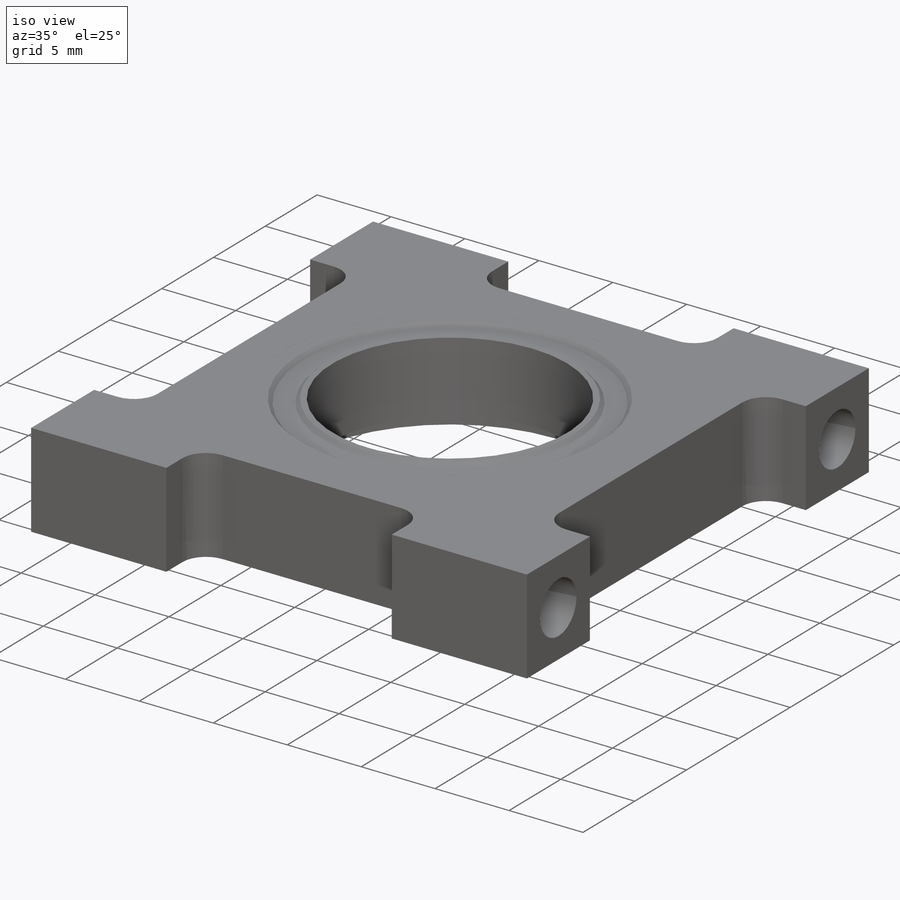
[diagram: iso view]
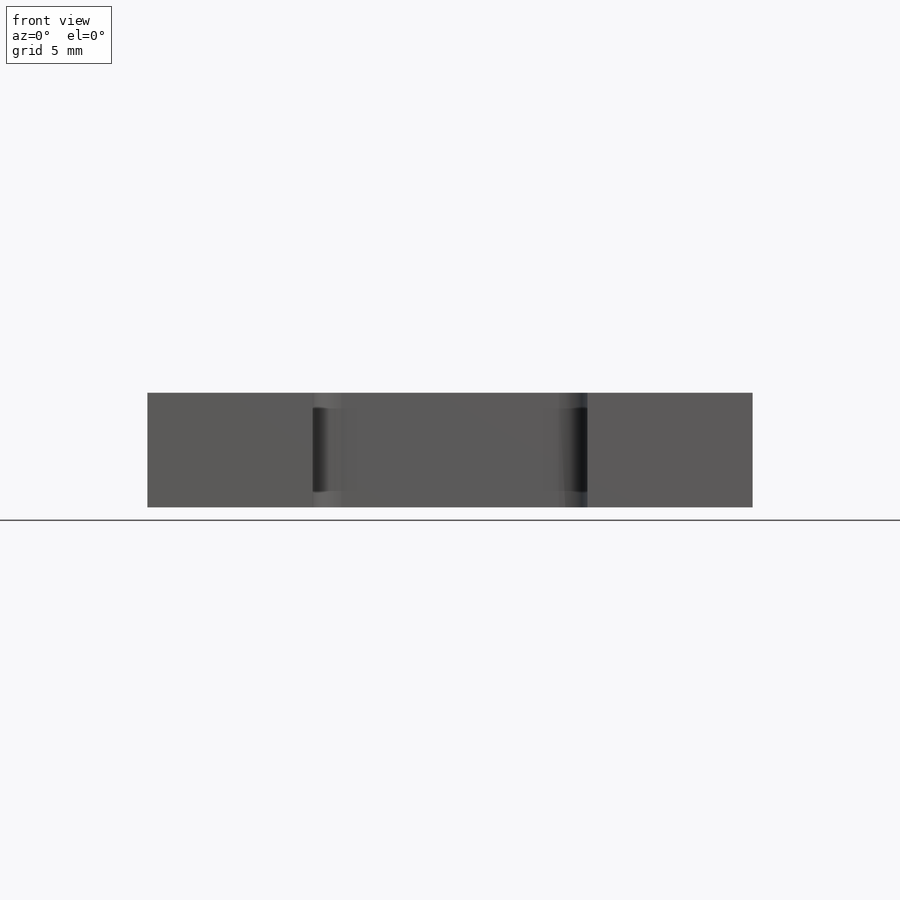
[diagram: front view]
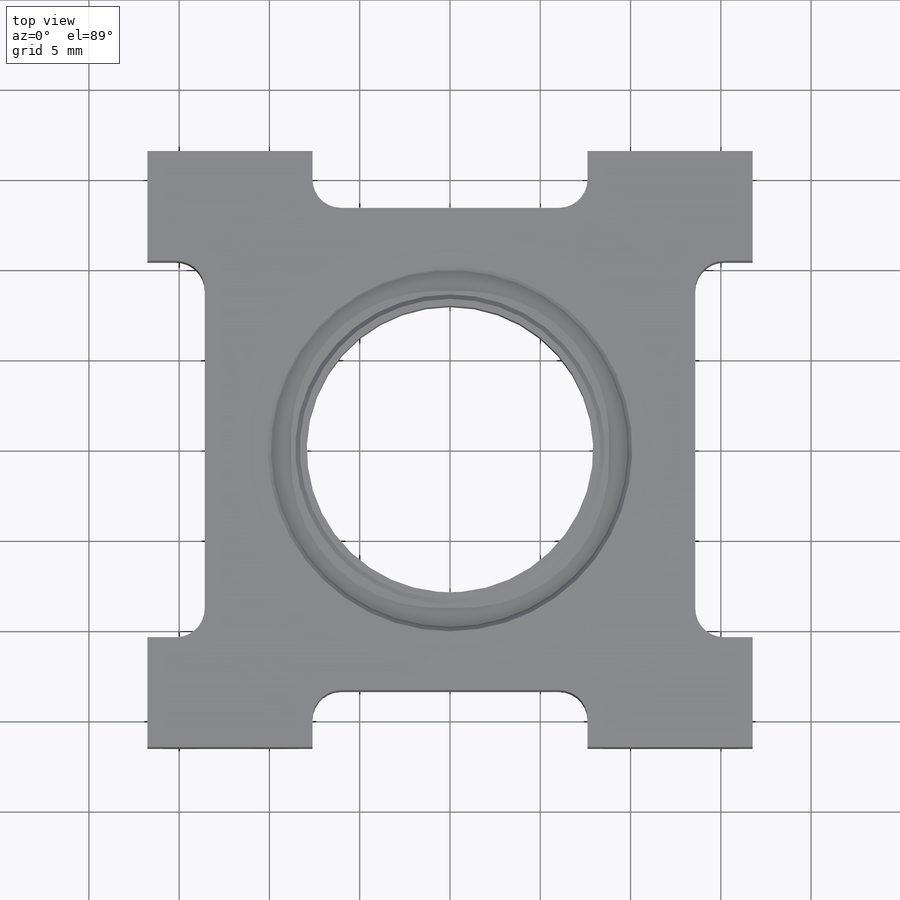
[diagram: top view]
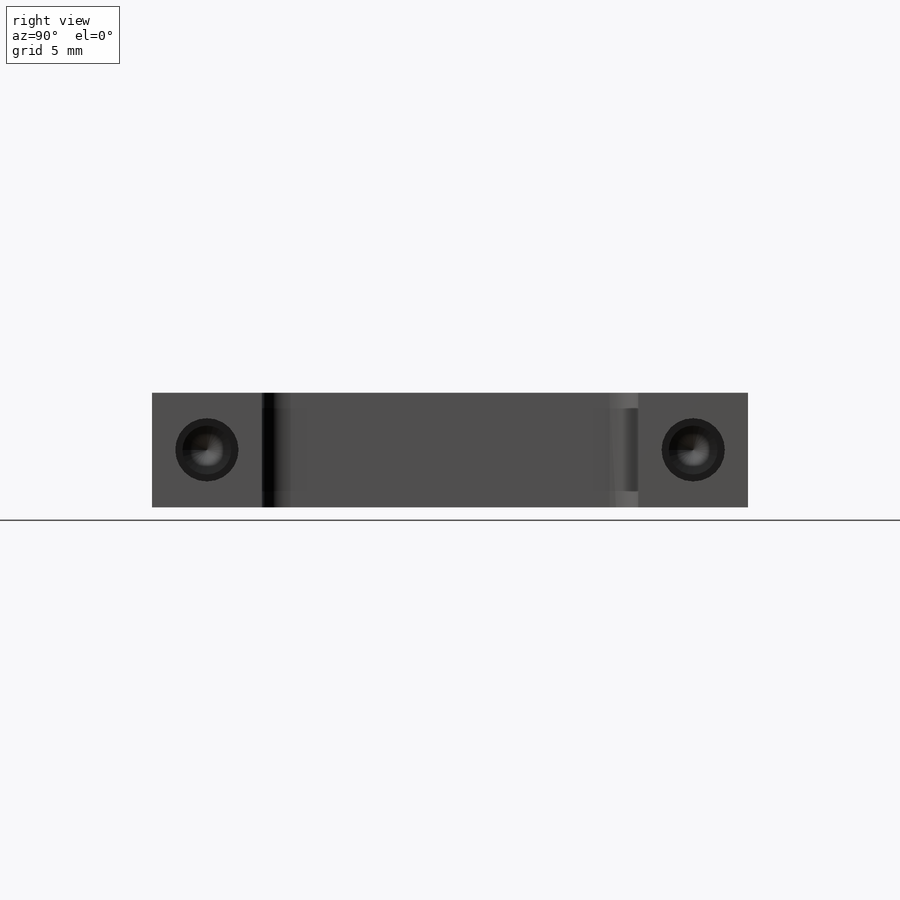
[diagram: right view]
SOLIDWORKS PART (.sldprt)
format: sldprt  version: not decoded by parser v0  size: 379,904 bytes
history: native  units: mm
features: sketch x7, extrude x4, plane x2, chamfer x2, material x1, cut_extrude x1, hole x1, mirror x1 (+13 scaffold rows collapsed)
feature tree (32):
  scaffold x13  (default folders/planes/origin — collapsed)
  material  "6061 Alloy"
  sketch  "Sketch1"  dims[c1.D6=1.5875mm c1.D10=1.5875mm c1.D11=20.32mm c1.D1=33.02mm c1.D2=33.528mm c2.D1=33.02mm c2.D2=33.528mm c2.D3=15.24mm c2.D4=7.62mm c2.D5=3.1496mm c2.D7=20.8534mm c2.D8=10.4267mm c2.D9=3.175mm]
  extrude  "Boss-Extrude1"  Depth=6.35mm
  sketch  "Sketch2"  dims[D1=22.225mm]
  cut_extrude  "Cut-Extrude1"  Depth=4.7625mm
  plane  "Plane1"
  sketch  "Sketch3"  dims[D1=1.27mm]
  extrude  "Boss-Extrude2"  Depth=4.75996mm
  chamfer  "Chamfer1"  Distance=0.254mm Angle=45deg
  sketch  "Sketch4"  dims[D1=15.875mm D2=0.635mm]
  extrude  "Boss-Extrude3"  Depth=4.75996mm
  chamfer  "Chamfer2"  Distance=0.254mm Angle=45deg
  plane  "Plane2"
  sketch  "Sketch5"
  extrude  "Boss-Extrude4"  Depth=4.2545mm
  hole  "#6-32 Tapped Hole1"  Diameter=2.7051mm Depth=7.9502mm
  sketch  "Sketch9"  dims[D1=19.05mm D2=19.05mm D3=3.175mm]
  sketch  "Sketch8"  dims[hole-wizard template sketch: 29 standard entries collapsed; hole parameters kept: c8.Tap Drill Depth=7.9502mm c8.Thread Major Dia.=3.5052mm c8.Thread Depth=7.0104mm c8.D5=~14.816244mm c8.Drill Angle=118.0deg]
  mirror  "Mirror1"
decode coverage: 14 of 16 modeling features carry decoded parameters
note: ~ marks probable driven/reference dimensions
note: suppression state not decoded; provenance and decode notes live in map.json
